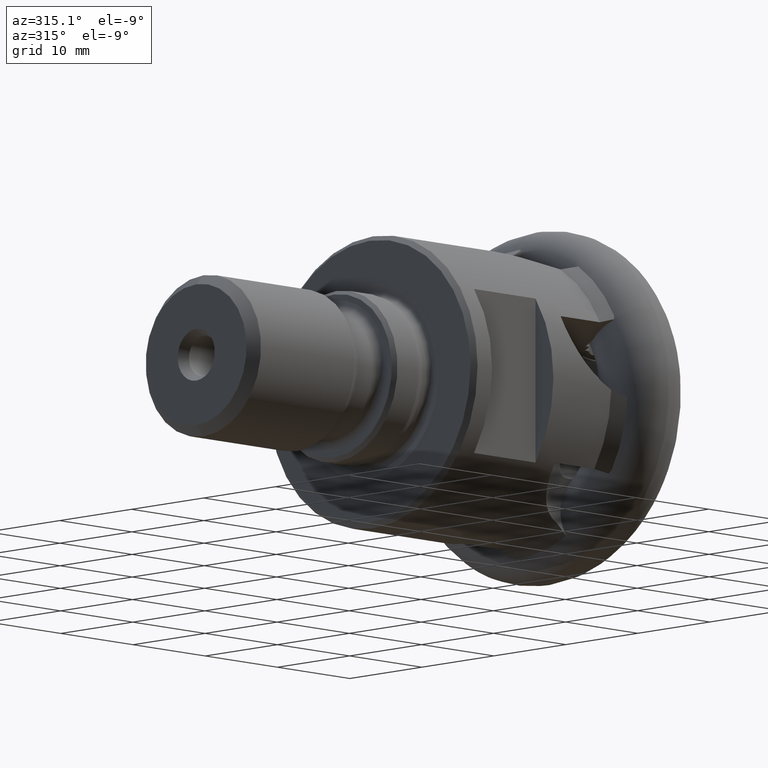
[diagram: clean part render]
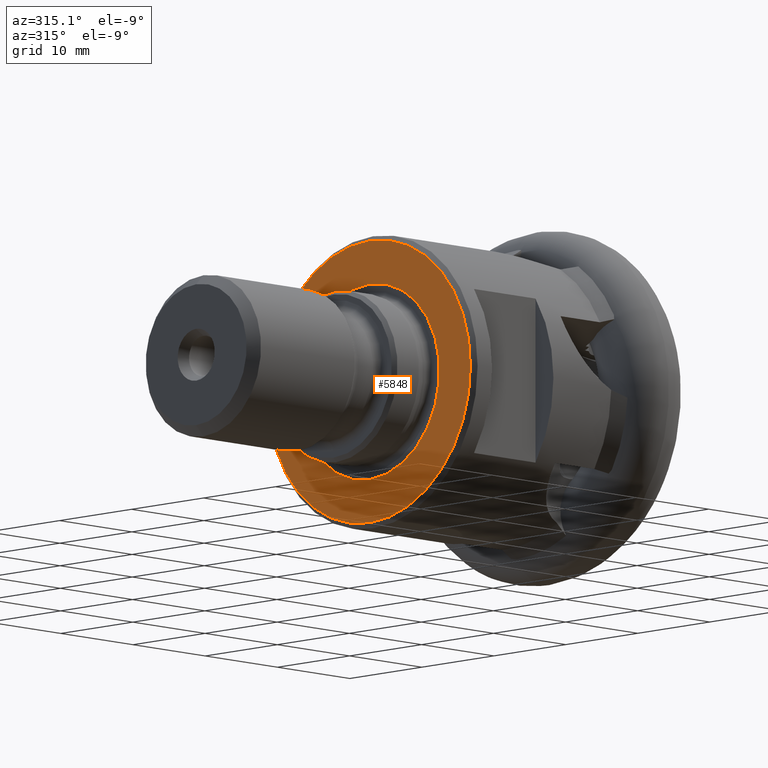
[diagram: same view with one face highlighted and labeled with its STEP entity id]
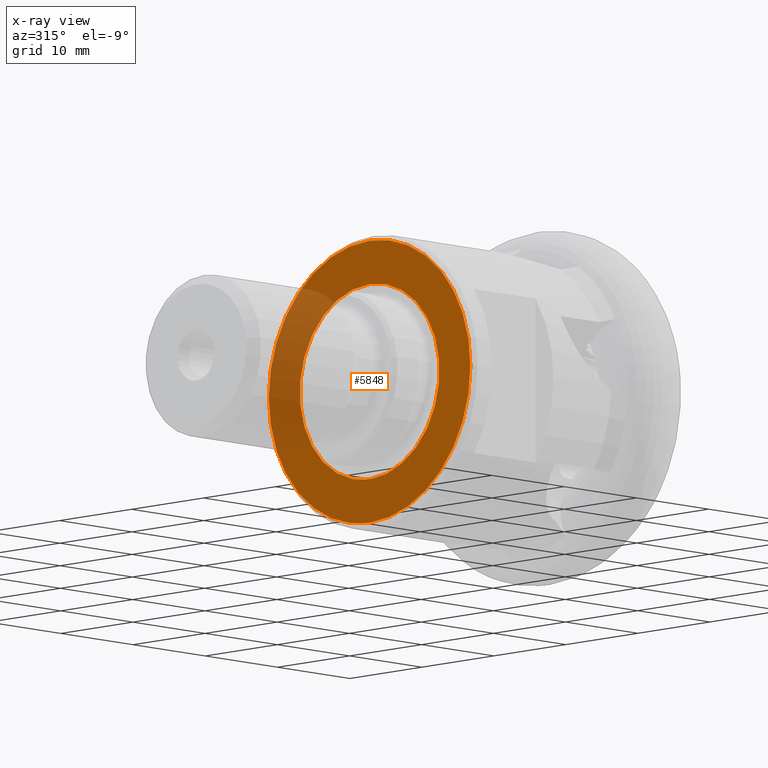
[diagram: x-ray of the same camera — body ghosted, the highlighted face saturated]
A machine part, auxiliary view. The second image highlights one B-rep face of the part: STEP entity #5848.
The next image is the same camera in x-ray: the body ghosted, the highlighted face saturated — about 23% of this face is hidden behind the body in this view.
In plain terms, the highlighted planar face has unit normal (-1, 0, 0).
Its self-contained STEP definition (entity closure, byte-faithful):
#56 = CARTESIAN_POINT ( 'NONE',  ( -27.10000000000000500, 1.187907395172932200E-015, -9.699999999999997500 ) ) ;
#193 = CARTESIAN_POINT ( 'NONE',  ( -27.10000000000000500, 0.0000000000000000000, 9.699999999999997500 ) ) ;
#271 = VERTEX_POINT ( 'NONE', #3450 ) ;
#390 = EDGE_CURVE ( 'NONE', #7654, #6427, #4757, .T. ) ;
#452 = DIRECTION ( 'NONE',  ( 0.0000000000000000000, 0.0000000000000000000, -1.000000000000000000 ) ) ;
#511 = EDGE_CURVE ( 'NONE', #3980, #271, #7463, .T. ) ;
#711 = EDGE_CURVE ( 'NONE', #271, #3980, #3645, .T. ) ;
#806 = CARTESIAN_POINT ( 'NONE',  ( -27.10000000000000500, 1.745121688784978200E-015, 13.99999999999999600 ) ) ;
#905 = DIRECTION ( 'NONE',  ( 0.0000000000000000000, 0.0000000000000000000, -1.000000000000000000 ) ) ;
#1022 = DIRECTION ( 'NONE',  ( 1.000000000000000000, -0.0000000000000000000, -0.0000000000000000000 ) ) ;
#1183 = ORIENTED_EDGE ( 'NONE', *, *, #390, .T. ) ;
#1255 = EDGE_LOOP ( 'NONE', ( #3713, #5733 ) ) ;
#1304 = AXIS2_PLACEMENT_3D ( 'NONE', #8057, #6875, #2382 ) ;
#1472 = CARTESIAN_POINT ( 'NONE',  ( -27.10000000000000500, 0.0000000000000000000, 0.0000000000000000000 ) ) ;
#1828 = DIRECTION ( 'NONE',  ( 0.0000000000000000000, 0.0000000000000000000, 1.000000000000000000 ) ) ;
#2012 = ORIENTED_EDGE ( 'NONE', *, *, #5798, .T. ) ;
#2068 = DIRECTION ( 'NONE',  ( 1.000000000000000000, -0.0000000000000000000, -0.0000000000000000000 ) ) ;
#2382 = DIRECTION ( 'NONE',  ( 0.0000000000000000000, 0.0000000000000000000, -1.000000000000000000 ) ) ;
#2893 = AXIS2_PLACEMENT_3D ( 'NONE', #8081, #8221, #1828 ) ;
#3450 = CARTESIAN_POINT ( 'NONE',  ( -27.10000000000000500, 0.0000000000000000000, -13.99999999999999600 ) ) ;
#3577 = FACE_OUTER_BOUND ( 'NONE', #1255, .T. ) ;
#3645 = CIRCLE ( 'NONE', #5535, 13.99999999999999600 ) ;
#3710 = DIRECTION ( 'NONE',  ( 0.0000000000000000000, 0.0000000000000000000, -1.000000000000000000 ) ) ;
#3713 = ORIENTED_EDGE ( 'NONE', *, *, #711, .F. ) ;
#3980 = VERTEX_POINT ( 'NONE', #806 ) ;
#4250 = CARTESIAN_POINT ( 'NONE',  ( -27.10000000000000500, 0.0000000000000000000, 0.0000000000000000000 ) ) ;
#4402 = FACE_BOUND ( 'NONE', #7779, .T. ) ;
#4420 = DIRECTION ( 'NONE',  ( 1.000000000000000000, -0.0000000000000000000, -0.0000000000000000000 ) ) ;
#4757 = CIRCLE ( 'NONE', #1304, 9.699999999999997500 ) ;
#5323 = AXIS2_PLACEMENT_3D ( 'NONE', #4250, #1022, #452 ) ;
#5535 = AXIS2_PLACEMENT_3D ( 'NONE', #1472, #2068, #905 ) ;
#5733 = ORIENTED_EDGE ( 'NONE', *, *, #511, .F. ) ;
#5798 = EDGE_CURVE ( 'NONE', #6427, #7654, #5882, .T. ) ;
#5848 = ADVANCED_FACE ( 'NONE', ( #4402, #3577 ), #6192, .T. ) ;
#5882 = CIRCLE ( 'NONE', #5323, 9.699999999999997500 ) ;
#6192 = PLANE ( 'NONE',  #2893 ) ;
#6378 = CARTESIAN_POINT ( 'NONE',  ( -27.10000000000000500, 0.0000000000000000000, 0.0000000000000000000 ) ) ;
#6427 = VERTEX_POINT ( 'NONE', #56 ) ;
#6875 = DIRECTION ( 'NONE',  ( 1.000000000000000000, -0.0000000000000000000, -0.0000000000000000000 ) ) ;
#7463 = CIRCLE ( 'NONE', #7784, 13.99999999999999600 ) ;
#7654 = VERTEX_POINT ( 'NONE', #193 ) ;
#7779 = EDGE_LOOP ( 'NONE', ( #1183, #2012 ) ) ;
#7784 = AXIS2_PLACEMENT_3D ( 'NONE', #6378, #4420, #3710 ) ;
#8057 = CARTESIAN_POINT ( 'NONE',  ( -27.10000000000000500, 0.0000000000000000000, 0.0000000000000000000 ) ) ;
#8081 = CARTESIAN_POINT ( 'NONE',  ( -27.10000000000000500, 13.99999999999999600, 0.0000000000000000000 ) ) ;
#8221 = DIRECTION ( 'NONE',  ( -1.000000000000000000, 0.0000000000000000000, 0.0000000000000000000 ) ) ;